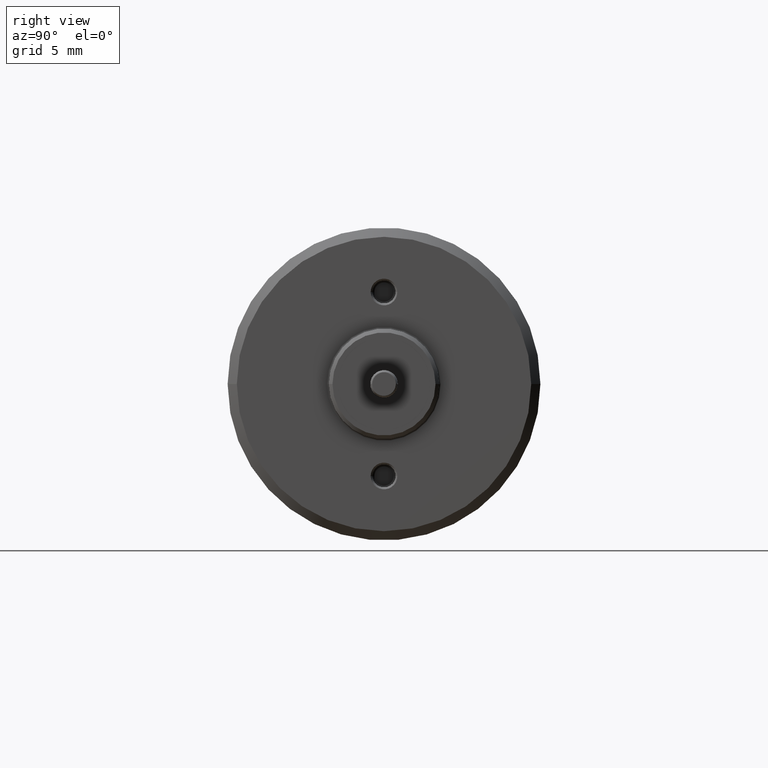
[diagram: clean part render]
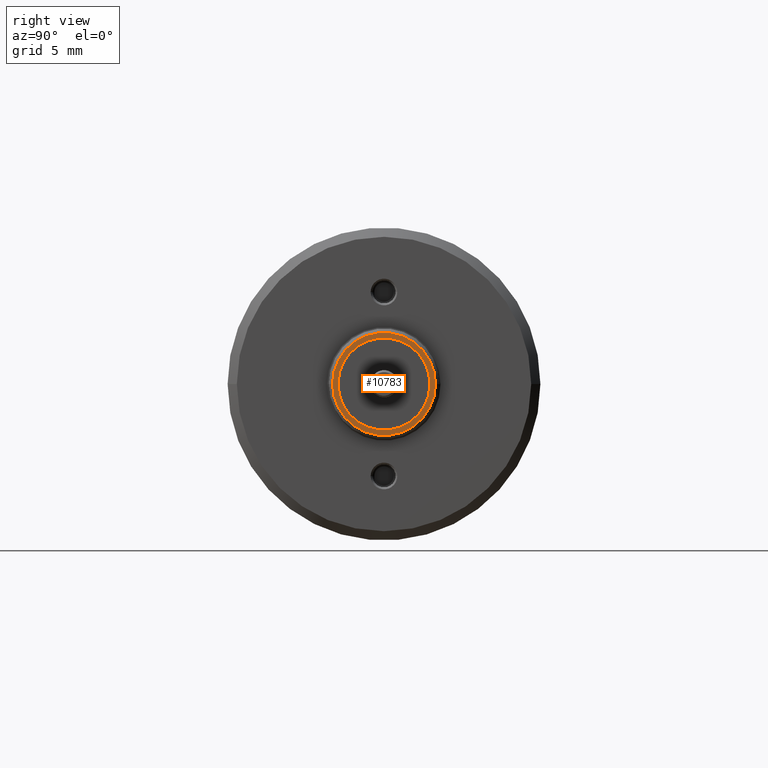
[diagram: same view with one face highlighted and labeled with its STEP entity id]
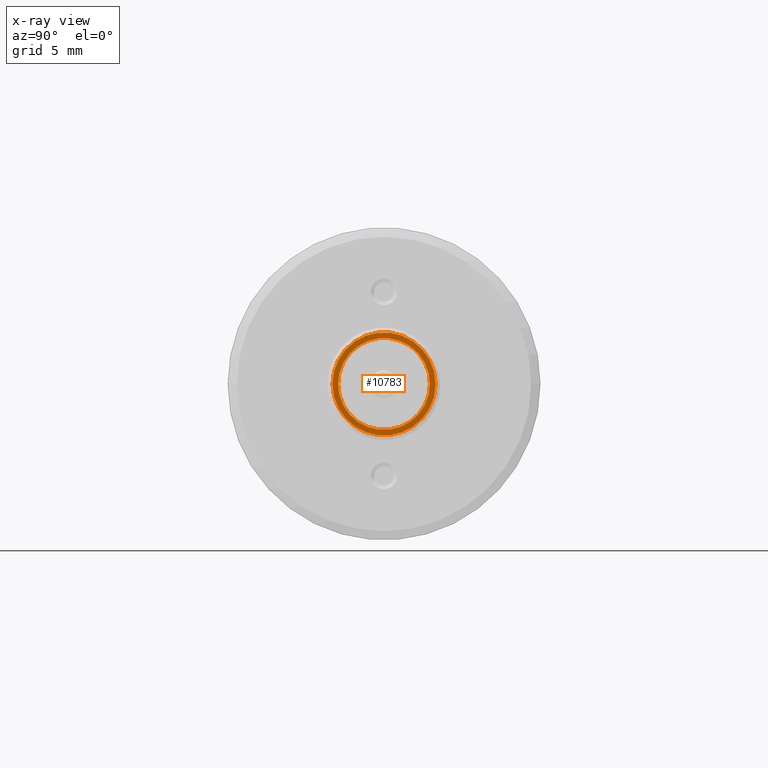
[diagram: x-ray of the same camera — body ghosted, the highlighted face saturated]
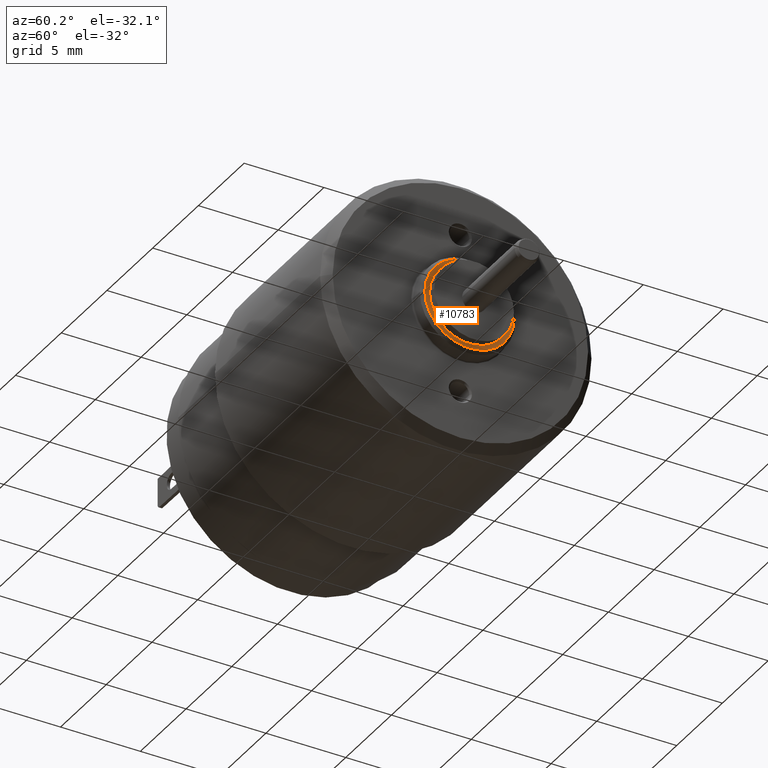
[diagram: same view with one face highlighted and labeled with its STEP entity id]
A machine part, right view. The second image highlights one B-rep face of the part: STEP entity #10783.
The next image is the same camera in x-ray: the body ghosted, the highlighted face saturated — about 0% of this face is hidden behind the body in this view.
A second angle (auxiliary view) of the same face is appended — the face is thin or edge-on in the first view.
In plain terms, the highlighted planar face has unit normal (-1, 0, 0).
Its self-contained STEP definition (entity closure, byte-faithful):
#3738=CARTESIAN_POINT('',(1.E0,0.E0,0.E0));
#3739=DIRECTION('',(-1.E0,0.E0,0.E0));
#3740=DIRECTION('',(0.E0,1.E0,0.E0));
#3741=AXIS2_PLACEMENT_3D('',#3738,#3739,#3740);
#3743=CARTESIAN_POINT('',(1.E0,0.E0,0.E0));
#3744=DIRECTION('',(1.E0,0.E0,0.E0));
#3745=DIRECTION('',(0.E0,1.E0,0.E0));
#3746=AXIS2_PLACEMENT_3D('',#3743,#3744,#3745);
#3748=CARTESIAN_POINT('',(9.999796557770E-1,-1.297978402507E-14,0.E0));
#3749=DIRECTION('',(-1.E0,0.E0,0.E0));
#3750=DIRECTION('',(0.E0,-1.E0,0.E0));
#3751=AXIS2_PLACEMENT_3D('',#3748,#3749,#3750);
#3753=CARTESIAN_POINT('',(9.999796557770E-1,0.E0,0.E0));
#3754=DIRECTION('',(-1.E0,0.E0,0.E0));
#3755=DIRECTION('',(0.E0,1.E0,0.E0));
#3756=AXIS2_PLACEMENT_3D('',#3753,#3754,#3755);
#4345=CARTESIAN_POINT('',(1.E0,2.5E0,0.E0));
#4347=VERTEX_POINT('',#4345);
#4353=CARTESIAN_POINT('',(1.E0,-2.5E0,0.E0));
#4355=VERTEX_POINT('',#4353);
#4420=CARTESIAN_POINT('',(9.999796557770E-1,-2.799976052961E0,0.E0));
#4421=CARTESIAN_POINT('',(9.999796557770E-1,2.799976052961E0,0.E0));
#4422=VERTEX_POINT('',#4420);
#4423=VERTEX_POINT('',#4421);
#10768=CARTESIAN_POINT('',(1.E0,0.E0,0.E0));
#10769=DIRECTION('',(-1.E0,0.E0,0.E0));
#10770=DIRECTION('',(0.E0,1.E0,0.E0));
#10771=AXIS2_PLACEMENT_3D('',#10768,#10769,#10770);
#10772=PLANE('',#10771);
#10773=ORIENTED_EDGE('',*,*,#10748,.T.);
#10774=ORIENTED_EDGE('',*,*,#10762,.T.);
#10775=EDGE_LOOP('',(#10773,#10774));
#10776=FACE_OUTER_BOUND('',#10775,.F.);
#10778=ORIENTED_EDGE('',*,*,#10777,.F.);
#10780=ORIENTED_EDGE('',*,*,#10779,.T.);
#10781=EDGE_LOOP('',(#10778,#10780));
#10782=FACE_BOUND('',#10781,.F.);
#10783=ADVANCED_FACE('',(#10776,#10782),#10772,.F.);
#3742=CIRCLE('',#3741,2.5E0);
#3747=CIRCLE('',#3746,2.5E0);
#3752=CIRCLE('',#3751,2.799976052961E0);
#3757=CIRCLE('',#3756,2.799976052961E0);
#10748=EDGE_CURVE('',#4422,#4423,#3752,.T.);
#10762=EDGE_CURVE('',#4423,#4422,#3757,.T.);
#10777=EDGE_CURVE('',#4347,#4355,#3742,.T.);
#10779=EDGE_CURVE('',#4347,#4355,#3747,.T.);